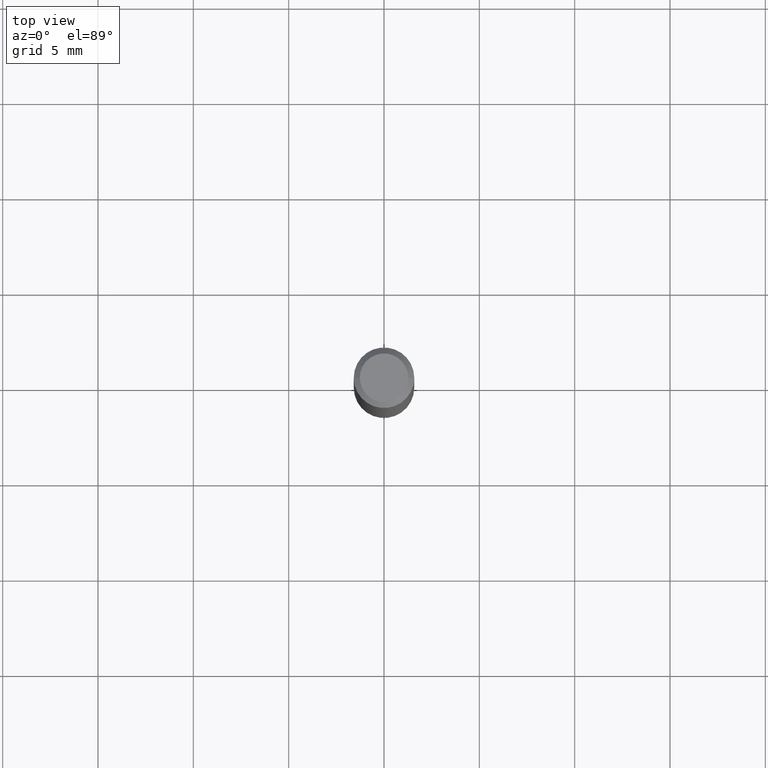
[diagram: clean part render]
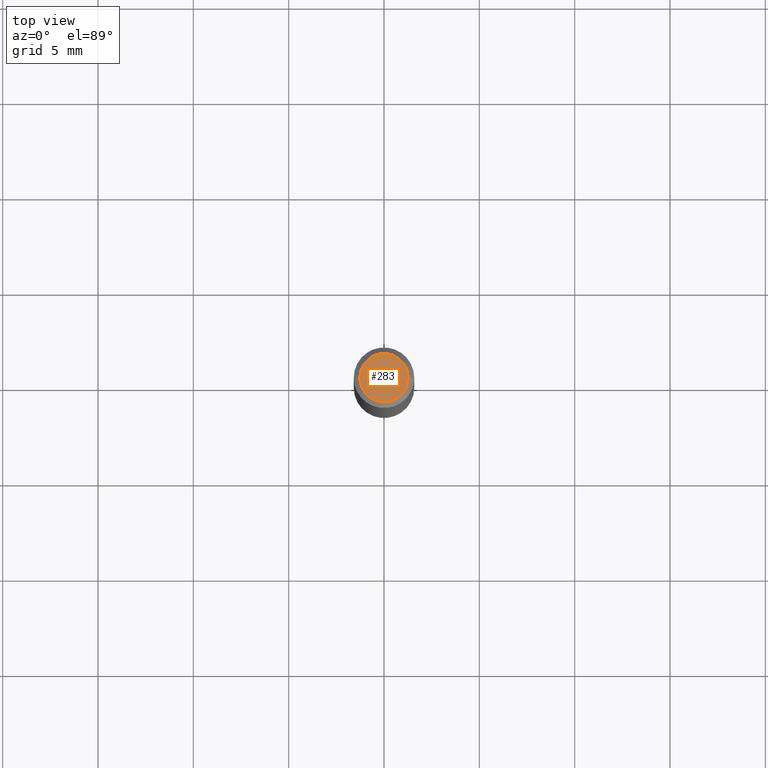
[diagram: same view with one face highlighted and labeled with its STEP entity id]
A machine part, top view. The second image highlights one B-rep face of the part: STEP entity #283.
In plain terms, the highlighted planar face has unit normal (0, -0, -1).
Its self-contained STEP definition (entity closure, byte-faithful):
#4 = CARTESIAN_POINT ( 'NONE',  ( -8.265746106709734507E-48, 1.180129479067563789E-33, 3.380025165646692144E-19 ) ) ;
#12 = CARTESIAN_POINT ( 'NONE',  ( -4.132873053354867254E-48, 5.900647395337818946E-34, 1.690012582823346072E-19 ) ) ;
#14 = FACE_OUTER_BOUND ( 'NONE', #39, .T. ) ;
#39 = EDGE_LOOP ( 'NONE', ( #113, #147 ) ) ;
#84 = PLANE ( 'NONE',  #317 ) ;
#98 = CARTESIAN_POINT ( 'NONE',  ( -8.265746106709734507E-48, 1.180129479067563789E-33, 3.380025165646692144E-19 ) ) ;
#113 = ORIENTED_EDGE ( 'NONE', *, *, #355, .T. ) ;
#124 = CIRCLE ( 'NONE', #276, 0.04999999999999999584 ) ;
#146 = DIRECTION ( 'NONE',  ( 1.000000000000000000, -6.982962677686265922E-15, 4.876194921942043128E-29 ) ) ;
#147 = ORIENTED_EDGE ( 'NONE', *, *, #299, .T. ) ;
#185 = CIRCLE ( 'NONE', #358, 0.04999999999999999584 ) ;
#197 = DIRECTION ( 'NONE',  ( -2.445468806185136597E-29, 3.491481338843145583E-15, 1.000000000000000000 ) ) ;
#204 = DIRECTION ( 'NONE',  ( -2.445468806185136597E-29, 3.491481338843145583E-15, 1.000000000000000000 ) ) ;
#224 = CARTESIAN_POINT ( 'NONE',  ( 0.04999999999999999584, -4.077247707424184212E-16, 3.380025165673154903E-19 ) ) ;
#252 = VERTEX_POINT ( 'NONE', #224 ) ;
#276 = AXIS2_PLACEMENT_3D ( 'NONE', #98, #204, #289 ) ;
#283 = ADVANCED_FACE ( 'NONE', ( #14 ), #84, .F. ) ;
#289 = DIRECTION ( 'NONE',  ( 1.000000000000000000, -6.982962677686265922E-15, 4.876194921942043128E-29 ) ) ;
#299 = EDGE_CURVE ( 'NONE', #252, #422, #185, .T. ) ;
#308 = DIRECTION ( 'NONE',  ( 2.438088387897960049E-29, -3.491481338843145188E-15, -1.000000000000000000 ) ) ;
#317 = AXIS2_PLACEMENT_3D ( 'NONE', #12, #308, #463 ) ;
#355 = EDGE_CURVE ( 'NONE', #422, #252, #124, .T. ) ;
#358 = AXIS2_PLACEMENT_3D ( 'NONE', #4, #197, #146 ) ;
#422 = VERTEX_POINT ( 'NONE', #427 ) ;
#427 = CARTESIAN_POINT ( 'NONE',  ( -0.04999999999999999584, 3.709698922520826725E-16, 3.380025165621512536E-19 ) ) ;
#463 = DIRECTION ( 'NONE',  ( -1.000000000000000000, 6.982962677686265922E-15, -4.876176775795935793E-29 ) ) ;